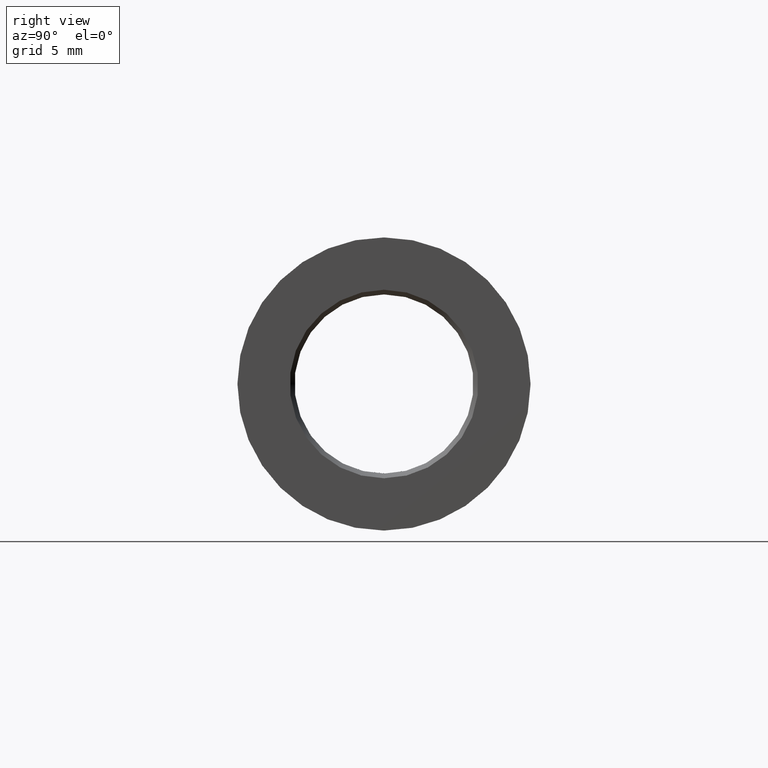
[diagram: clean part render]
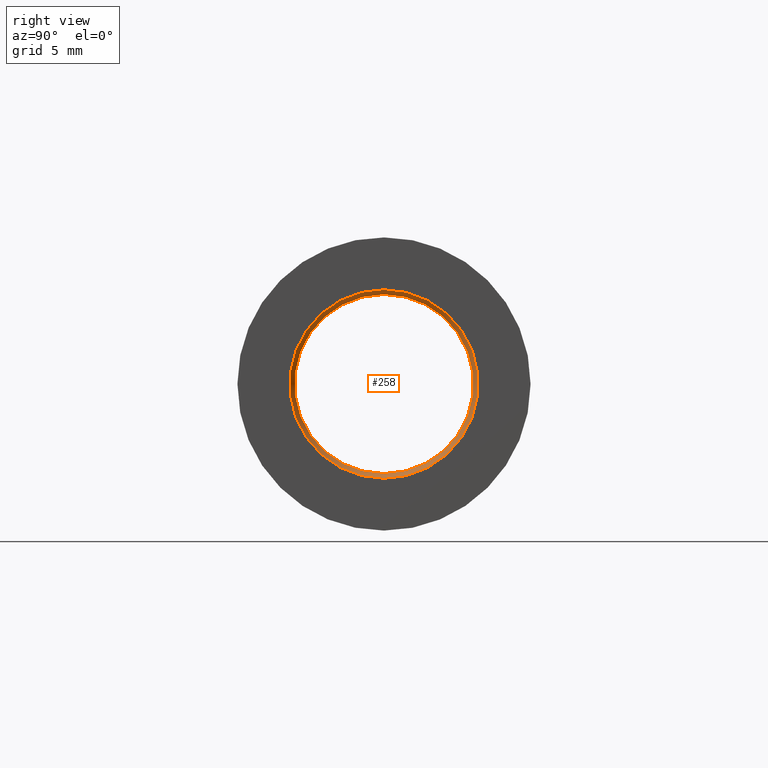
[diagram: same view with one face highlighted and labeled with its STEP entity id]
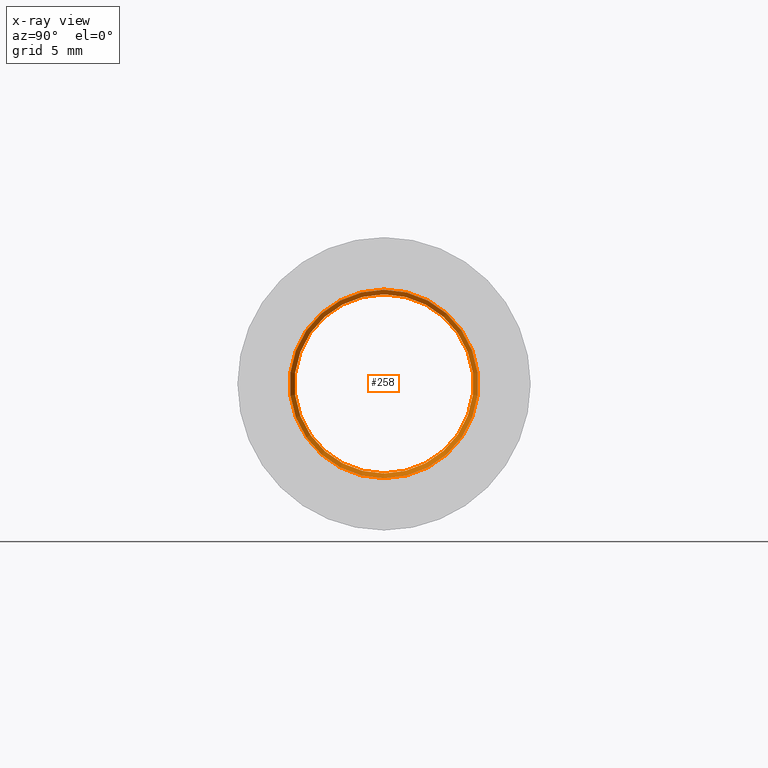
[diagram: x-ray of the same camera — body ghosted, the highlighted face saturated]
A machine part, right view. The second image highlights one B-rep face of the part: STEP entity #258.
The next image is the same camera in x-ray: the body ghosted, the highlighted face saturated — about 0% of this face is hidden behind the body in this view.
In plain terms, the highlighted conical surface has half-angle 30 deg.
Its self-contained STEP definition (entity closure, byte-faithful):
#8 = CIRCLE ( 'NONE', #173, 5.788675134594814000 ) ;
#19 = CARTESIAN_POINT ( 'NONE',  ( 0.0000000000000000000, 0.0000000000000000000, 0.0000000000000000000 ) ) ;
#32 = ORIENTED_EDGE ( 'NONE', *, *, #308, .F. ) ;
#58 = EDGE_CURVE ( 'NONE', #231, #231, #208, .T. ) ;
#84 = EDGE_LOOP ( 'NONE', ( #32 ) ) ;
#103 = DIRECTION ( 'NONE',  ( 0.0000000000000000000, 0.0000000000000000000, 1.000000000000000000 ) ) ;
#124 = DIRECTION ( 'NONE',  ( 1.000000000000000000, 0.0000000000000000000, 0.0000000000000000000 ) ) ;
#144 = DIRECTION ( 'NONE',  ( -1.000000000000000000, -0.0000000000000000000, -0.0000000000000000000 ) ) ;
#158 = DIRECTION ( 'NONE',  ( 0.0000000000000000000, 0.0000000000000000000, -1.000000000000000000 ) ) ;
#173 = AXIS2_PLACEMENT_3D ( 'NONE', #19, #283, #416 ) ;
#189 = AXIS2_PLACEMENT_3D ( 'NONE', #285, #124, #158 ) ;
#205 = CARTESIAN_POINT ( 'NONE',  ( -0.5000000000000004400, 0.0000000000000000000, 0.0000000000000000000 ) ) ;
#208 = CIRCLE ( 'NONE', #233, 5.500000000000000000 ) ;
#213 = EDGE_LOOP ( 'NONE', ( #321 ) ) ;
#231 = VERTEX_POINT ( 'NONE', #324 ) ;
#233 = AXIS2_PLACEMENT_3D ( 'NONE', #205, #144, #103 ) ;
#258 = ADVANCED_FACE ( 'NONE', ( #332, #341 ), #417, .F. ) ;
#273 = VERTEX_POINT ( 'NONE', #390 ) ;
#283 = DIRECTION ( 'NONE',  ( -1.000000000000000000, -0.0000000000000000000, -0.0000000000000000000 ) ) ;
#285 = CARTESIAN_POINT ( 'NONE',  ( -0.5000000000000004400, 0.0000000000000000000, 0.0000000000000000000 ) ) ;
#308 = EDGE_CURVE ( 'NONE', #273, #273, #8, .T. ) ;
#321 = ORIENTED_EDGE ( 'NONE', *, *, #58, .T. ) ;
#324 = CARTESIAN_POINT ( 'NONE',  ( -0.5000000000000004400, 0.0000000000000000000, 5.500000000000000000 ) ) ;
#332 = FACE_OUTER_BOUND ( 'NONE', #84, .T. ) ;
#341 = FACE_BOUND ( 'NONE', #213, .T. ) ;
#390 = CARTESIAN_POINT ( 'NONE',  ( 0.0000000000000000000, 0.0000000000000000000, 5.788675134594814000 ) ) ;
#416 = DIRECTION ( 'NONE',  ( 0.0000000000000000000, 0.0000000000000000000, 1.000000000000000000 ) ) ;
#417 = CONICAL_SURFACE ( 'NONE', #189, 5.500000000000000000, 0.5235987755983001500 ) ;